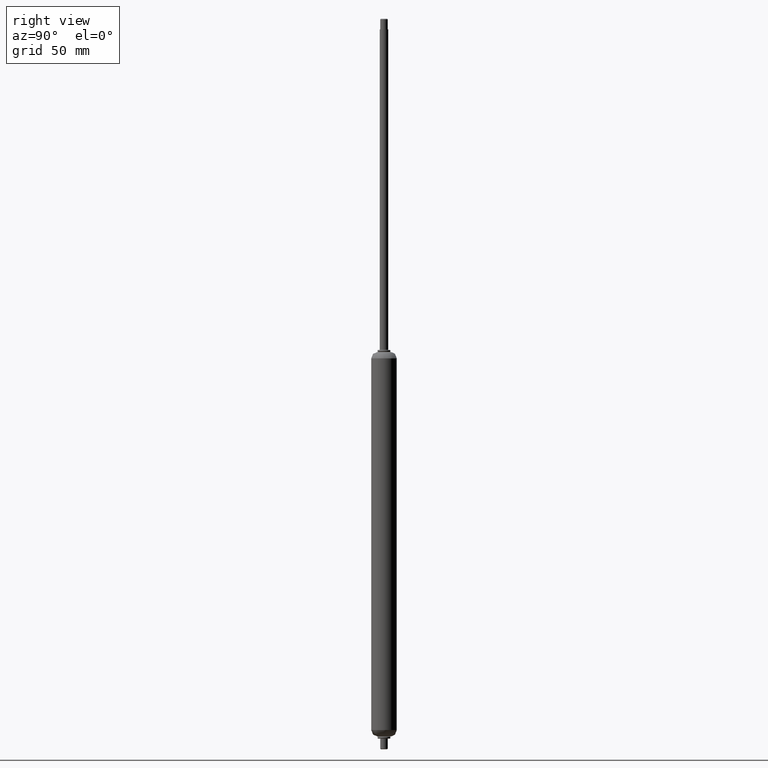
[diagram: clean part render]
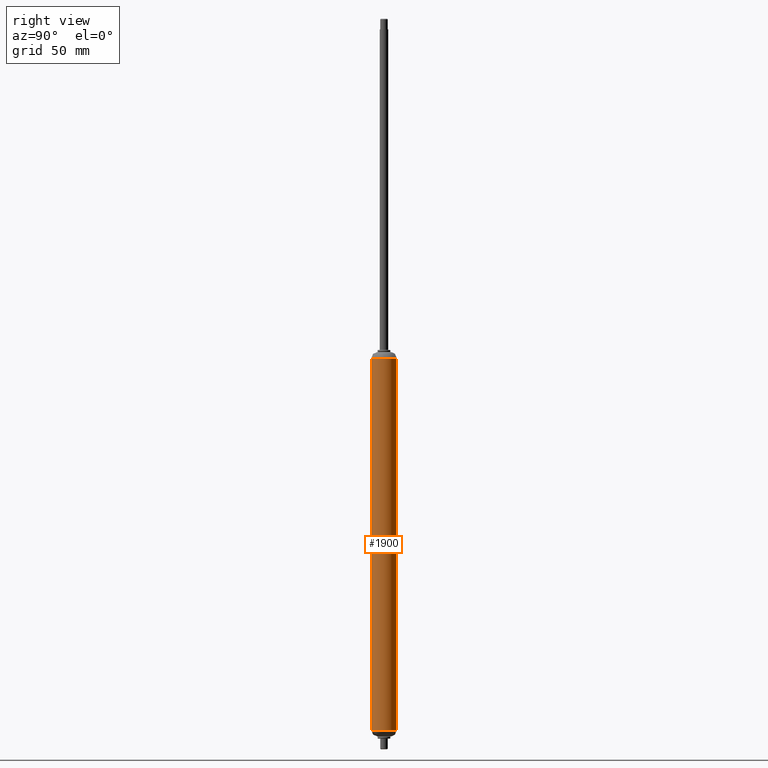
[diagram: same view with one face highlighted and labeled with its STEP entity id]
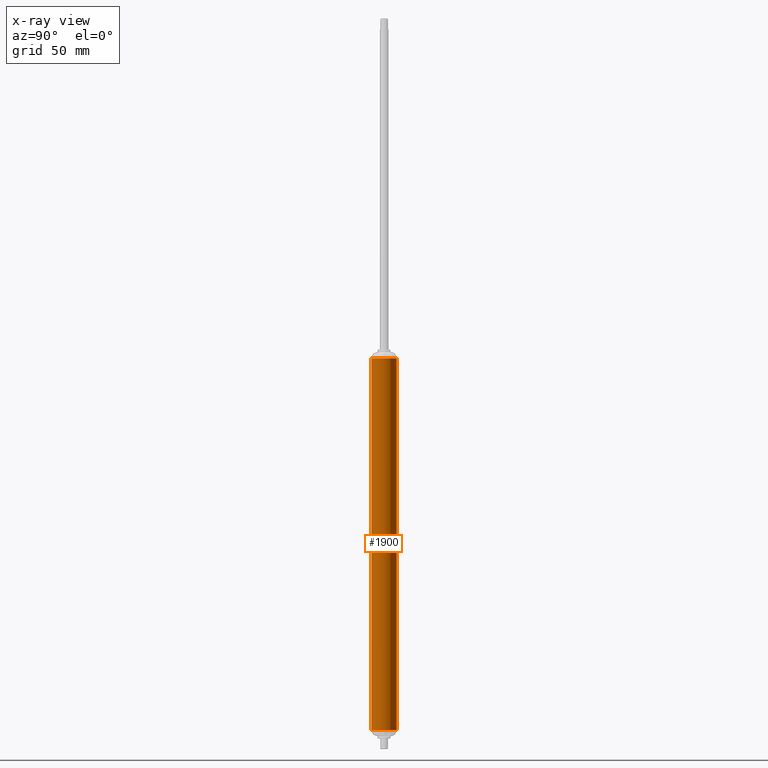
[diagram: x-ray of the same camera — body ghosted, the highlighted face saturated]
A machine part, right view. The second image highlights one B-rep face of the part: STEP entity #1900.
The next image is the same camera in x-ray: the body ghosted, the highlighted face saturated — about 0% of this face is hidden behind the body in this view.
In plain terms, the highlighted face is a freeform B-spline surface patch.
Its self-contained STEP definition (entity closure, byte-faithful):
#1734=CARTESIAN_POINT('',(-5.616861472659112,-2.109707846349194,1.350000100000072));
#1735=CARTESIAN_POINT('',(-5.933784116190037,-1.265936710292305,1.350000100000072));
#1736=CARTESIAN_POINT('',(-5.988808790530326,-0.366291237209098,1.350000100000072));
#1737=CARTESIAN_POINT('',(-6.355100027739424,5.622517553321434,1.350000100000072));
#1738=CARTESIAN_POINT('',(-0.366291237208892,5.988808790530532,1.350000100000072));
#1739=CARTESIAN_POINT('',(5.622517553321640,6.355100027739630,1.350000100000072));
#1740=CARTESIAN_POINT('',(5.988808790530738,0.366291237209098,1.350000100000072));
#1741=CARTESIAN_POINT('',(6.355100027739836,-5.622517553321434,1.350000100000072));
#1742=CARTESIAN_POINT('',(0.366291237209304,-5.988808790530532,1.350000100000072));
#1743=CARTESIAN_POINT('',(-5.616861472659112,-2.109707846349194,-181.458754102502750));
#1744=CARTESIAN_POINT('',(-5.933784116190037,-1.265936710292305,-181.458754102502750));
#1745=CARTESIAN_POINT('',(-5.988808790530326,-0.366291237209098,-181.458754102502810));
#1746=CARTESIAN_POINT('',(-6.355100027739424,5.622517553321434,-181.458754102502810));
#1747=CARTESIAN_POINT('',(-0.366291237208892,5.988808790530532,-181.458754102502810));
#1748=CARTESIAN_POINT('',(5.622517553321640,6.355100027739630,-181.458754102502810));
#1749=CARTESIAN_POINT('',(5.988808790530738,0.366291237209098,-181.458754102502810));
#1750=CARTESIAN_POINT('',(6.355100027739836,-5.622517553321434,-181.458754102502810));
#1751=CARTESIAN_POINT('',(0.366291237209304,-5.988808790530532,-181.458754102502810));
#1759=(BOUNDED_SURFACE()B_SPLINE_SURFACE(2,1,((#1734,#1743),(#1735,#1744),(#1736,#1745),(#1737,#1746),(#1738,#1747),(#1739,#1748),(#1740,#1749),(#1741,#1750),(#1742,#1751)),.UNSPECIFIED.,.F.,.F.,.U.)B_SPLINE_SURFACE_WITH_KNOTS((3,2,2,2,3),(2,2),(0.0,1.988225099390634,11.929350596343800,21.870476093296968,31.811601590250142),(0.0,182.808754202502910),.UNSPECIFIED.)GEOMETRIC_REPRESENTATION_ITEM()RATIONAL_B_SPLINE_SURFACE(((0.906274169979695,0.906274169979695),(0.941421356237309,0.941421356237309),(1.0,1.0),(0.707106781186548,0.707106781186548),(1.0,1.0),(0.707106781186548,0.707106781186548),(1.0,1.0),(0.707106781186548,0.707106781186548),(1.0,1.0)))REPRESENTATION_ITEM('')SURFACE());
#1760=CARTESIAN_POINT('',(-5.616861472636417,-2.109707846409630,-2.999999999999994));
#1761=VERTEX_POINT('',#1760);
#1762=CARTESIAN_POINT('',(-5.999999999999130,0.0,-3.0));
#1763=VERTEX_POINT('',#1762);
#1764=CARTESIAN_POINT('',(-5.616861472636417,-2.109707846409630,-2.999999999999994));
#1765=CARTESIAN_POINT('',(-5.999999999999134,-1.089644316467128,-3.0));
#1766=CARTESIAN_POINT('',(-5.999999999999134,0.0,-3.0));
#1774=(BOUNDED_CURVE()B_SPLINE_CURVE(2,(#1764,#1765,#1766),.UNSPECIFIED.,.F.,.U.)B_SPLINE_CURVE_WITH_KNOTS((3,3),(0.940284170895511,1.0),.UNSPECIFIED.)CURVE()GEOMETRIC_REPRESENTATION_ITEM()RATIONAL_B_SPLINE_CURVE((0.893499554631606,0.930038554397888,1.0))REPRESENTATION_ITEM(''));
#1775=EDGE_CURVE('',#1761,#1763,#1774,.T.);
#1776=ORIENTED_EDGE('',*,*,#1775,.T.);
#1777=CARTESIAN_POINT('',(-2.119812790443576,5.613055650308645,-3.0));
#1778=VERTEX_POINT('',#1777);
#1779=CARTESIAN_POINT('',(-5.999999999999134,0.0,-3.0));
#1780=CARTESIAN_POINT('',(-5.999999999999133,4.147673692857475,-3.0));
#1781=CARTESIAN_POINT('',(-2.119812790443576,5.613055650308645,-3.000000000000000));
#1789=(BOUNDED_CURVE()B_SPLINE_CURVE(2,(#1779,#1780,#1781),.UNSPECIFIED.,.F.,.U.)B_SPLINE_CURVE_WITH_KNOTS((3,3),(0.0,0.189999972138884),.UNSPECIFIED.)CURVE()GEOMETRIC_REPRESENTATION_ITEM()RATIONAL_B_SPLINE_CURVE((1.0,0.777401186343104,0.893152519829879))REPRESENTATION_ITEM(''));
#1790=EDGE_CURVE('',#1763,#1778,#1789,.T.);
#1791=ORIENTED_EDGE('',*,*,#1790,.T.);
#1792=CARTESIAN_POINT('',(5.999999999999546,0.0,-3.0));
#1793=VERTEX_POINT('',#1792);
#1794=CARTESIAN_POINT('',(-2.119812790443576,5.613055650308645,-3.000000000000000));
#1795=CARTESIAN_POINT('',(-1.095222233118439,5.999999999999340,-3.0));
#1796=CARTESIAN_POINT('',(2.060574E-013,5.999999999999340,-3.0));
#1797=CARTESIAN_POINT('',(5.999999999999545,5.999999999999341,-3.0));
#1798=CARTESIAN_POINT('',(5.999999999999546,0.0,-3.0));
#1806=(BOUNDED_CURVE()B_SPLINE_CURVE(2,(#1794,#1795,#1796,#1797,#1798),.UNSPECIFIED.,.F.,.U.)B_SPLINE_CURVE_WITH_KNOTS((3,2,3),(0.189999972138884,0.250000000000000,0.500000000000000),.UNSPECIFIED.)CURVE()GEOMETRIC_REPRESENTATION_ITEM()RATIONAL_B_SPLINE_CURVE((0.893152519829879,0.929705594843444,1.0,0.707106781186548,1.0))REPRESENTATION_ITEM(''));
#1807=EDGE_CURVE('',#1778,#1793,#1806,.T.);
#1808=ORIENTED_EDGE('',*,*,#1807,.T.);
#1809=CARTESIAN_POINT('',(0.366291238628772,-5.988808790443720,-2.999999999999994));
#1810=VERTEX_POINT('',#1809);
#1811=CARTESIAN_POINT('',(5.999999999999546,0.0,-3.0));
#1812=CARTESIAN_POINT('',(5.999999999999545,-5.644236398752971,-3.000000000000001));
#1813=CARTESIAN_POINT('',(0.366291238628772,-5.988808790443720,-2.999999999999994));
#1821=(BOUNDED_CURVE()B_SPLINE_CURVE(2,(#1811,#1812,#1813),.UNSPECIFIED.,.F.,.U.)B_SPLINE_CURVE_WITH_KNOTS((3,3),(0.500000000000000,0.739332962160175),.UNSPECIFIED.)CURVE()GEOMETRIC_REPRESENTATION_ITEM()RATIONAL_B_SPLINE_CURVE((1.0,0.719603993378993,0.976072041497903))REPRESENTATION_ITEM(''));
#1822=EDGE_CURVE('',#1793,#1810,#1821,.T.);
#1823=ORIENTED_EDGE('',*,*,#1822,.T.);
#1824=CARTESIAN_POINT('',(0.366291238628771,-5.988808790443728,-177.000003081855200));
#1825=VERTEX_POINT('',#1824);
#1826=CARTESIAN_POINT('',(0.366291238628772,-5.988808790443720,-2.999999999999994));
#1827=CARTESIAN_POINT('',(0.366291238628771,-5.988808790443728,-177.000003081855200));
#1828=QUASI_UNIFORM_CURVE('',1,(#1826,#1827),.UNSPECIFIED.,.F.,.U.);
#1829=EDGE_CURVE('',#1810,#1825,#1828,.T.);
#1830=ORIENTED_EDGE('',*,*,#1829,.T.);
#1831=CARTESIAN_POINT('',(5.999999999999527,0.0,-177.000003999999990));
#1832=VERTEX_POINT('',#1831);
#1833=CARTESIAN_POINT('',(5.999999999999527,0.0,-177.000003999999990));
#1834=CARTESIAN_POINT('',(5.999999999999525,-5.644236398753535,-177.000003999999960));
#1835=CARTESIAN_POINT('',(0.366291238628771,-5.988808790443727,-177.000003081855230));
#1843=(BOUNDED_CURVE()B_SPLINE_CURVE(2,(#1833,#1834,#1835),.UNSPECIFIED.,.F.,.U.)B_SPLINE_CURVE_WITH_KNOTS((3,3),(0.500000000000000,0.739332962160193),.UNSPECIFIED.)CURVE()GEOMETRIC_REPRESENTATION_ITEM()RATIONAL_B_SPLINE_CURVE((1.0,0.719603993378972,0.976072041497941))REPRESENTATION_ITEM(''));
#1844=EDGE_CURVE('',#1832,#1825,#1843,.T.);
#1845=ORIENTED_EDGE('',*,*,#1844,.F.);
#1846=CARTESIAN_POINT('',(-2.119812790443571,5.613055650308636,-177.000004000002690));
#1847=VERTEX_POINT('',#1846);
#1848=CARTESIAN_POINT('',(-2.119812790443572,5.613055650308636,-177.000004000002780));
#1849=CARTESIAN_POINT('',(-1.095222233118434,5.999999999999321,-177.000003999999990));
#1850=CARTESIAN_POINT('',(2.060574E-013,5.999999999999321,-177.000003999999990));
#1851=CARTESIAN_POINT('',(5.999999999999526,5.999999999999320,-177.000003999999930));
#1852=CARTESIAN_POINT('',(5.999999999999527,0.0,-177.000003999999990));
#1860=(BOUNDED_CURVE()B_SPLINE_CURVE(2,(#1848,#1849,#1850,#1851,#1852),.UNSPECIFIED.,.F.,.U.)B_SPLINE_CURVE_WITH_KNOTS((3,2,3),(0.189999972138884,0.250000000000000,0.500000000000000),.UNSPECIFIED.)CURVE()GEOMETRIC_REPRESENTATION_ITEM()RATIONAL_B_SPLINE_CURVE((0.893152519829879,0.929705594843444,1.0,0.707106781186548,1.0))REPRESENTATION_ITEM(''));
#1861=EDGE_CURVE('',#1847,#1832,#1860,.T.);
#1862=ORIENTED_EDGE('',*,*,#1861,.F.);
#1863=CARTESIAN_POINT('',(-5.999999999997842,0.0,-177.000002044318900));
#1864=VERTEX_POINT('',#1863);
#1865=CARTESIAN_POINT('',(-5.999999999997842,0.0,-177.000002044318900));
#1866=CARTESIAN_POINT('',(-5.999999999998460,4.147673692857419,-177.000003022160800));
#1867=CARTESIAN_POINT('',(-2.119812790443572,5.613055650308636,-177.000004000002780));
#1875=(BOUNDED_CURVE()B_SPLINE_CURVE(2,(#1865,#1866,#1867),.UNSPECIFIED.,.F.,.U.)B_SPLINE_CURVE_WITH_KNOTS((3,3),(0.0,0.189999972138884),.UNSPECIFIED.)CURVE()GEOMETRIC_REPRESENTATION_ITEM()RATIONAL_B_SPLINE_CURVE((1.0,0.777401186343104,0.893152519829879))REPRESENTATION_ITEM(''));
#1876=EDGE_CURVE('',#1864,#1847,#1875,.T.);
#1877=ORIENTED_EDGE('',*,*,#1876,.F.);
#1878=CARTESIAN_POINT('',(-5.616861472635868,-2.109707846409423,-177.000002106760290));
#1879=VERTEX_POINT('',#1878);
#1880=CARTESIAN_POINT('',(-5.616861472635868,-2.109707846409422,-177.000002106760290));
#1881=CARTESIAN_POINT('',(-5.999999999997840,-1.089644316466900,-177.000002044318900));
#1882=CARTESIAN_POINT('',(-5.999999999997842,0.0,-177.000002044318900));
#1890=(BOUNDED_CURVE()B_SPLINE_CURVE(2,(#1880,#1881,#1882),.UNSPECIFIED.,.F.,.U.)B_SPLINE_CURVE_WITH_KNOTS((3,3),(0.940284170895522,1.0),.UNSPECIFIED.)CURVE()GEOMETRIC_REPRESENTATION_ITEM()RATIONAL_B_SPLINE_CURVE((0.893499554631620,0.930038554397902,1.0))REPRESENTATION_ITEM(''));
#1891=EDGE_CURVE('',#1879,#1864,#1890,.T.);
#1892=ORIENTED_EDGE('',*,*,#1891,.F.);
#1893=CARTESIAN_POINT('',(-5.616861472636417,-2.109707846409630,-2.999999999999994));
#1894=CARTESIAN_POINT('',(-5.616861472635868,-2.109707846409423,-177.000002106760290));
#1895=QUASI_UNIFORM_CURVE('',1,(#1893,#1894),.UNSPECIFIED.,.F.,.U.);
#1896=EDGE_CURVE('',#1761,#1879,#1895,.T.);
#1897=ORIENTED_EDGE('',*,*,#1896,.F.);
#1898=EDGE_LOOP('',(#1776,#1791,#1808,#1823,#1830,#1845,#1862,#1877,#1892,#1897));
#1899=FACE_OUTER_BOUND('',#1898,.T.);
#1900=ADVANCED_FACE('',(#1899),#1759,.T.);